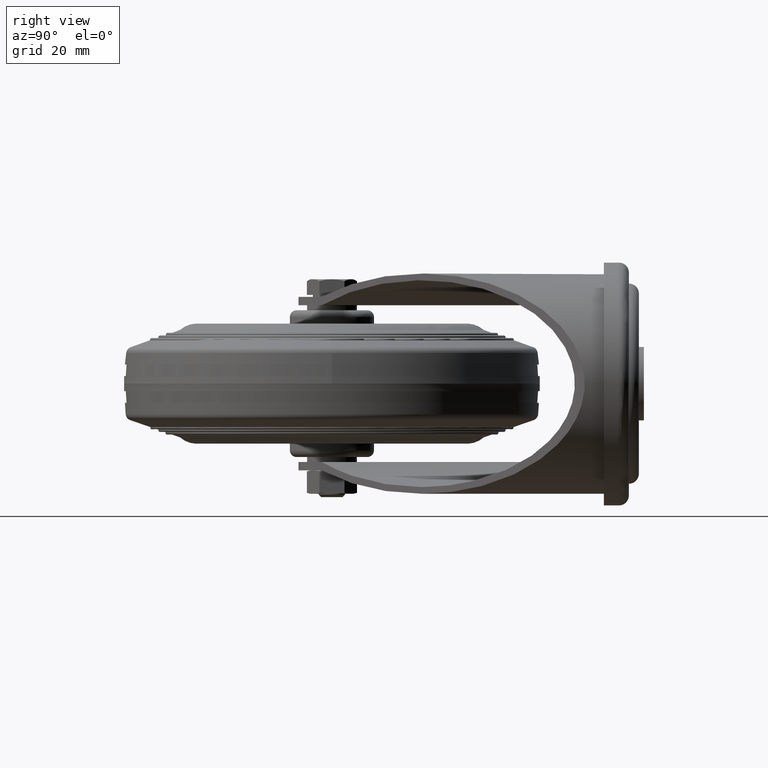
[diagram: clean part render]
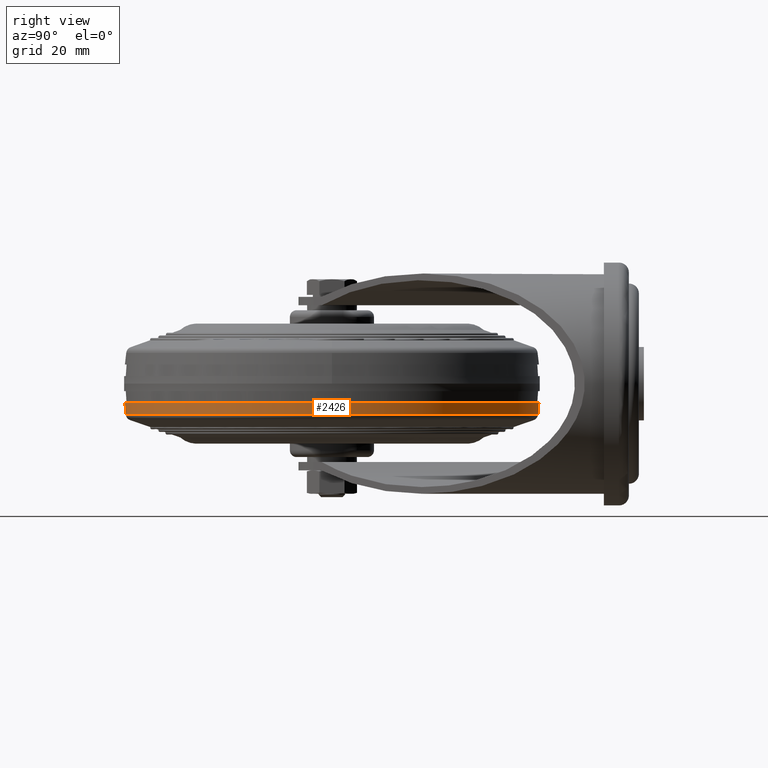
[diagram: same view with one face highlighted and labeled with its STEP entity id]
A machine part, right view. The second image highlights one B-rep face of the part: STEP entity #2426.
In plain terms, the highlighted conical surface has half-angle 4 deg.
Its self-contained STEP definition (entity closure, byte-faithful):
#223=CONICAL_SURFACE('',#2901,62.0979208313248,0.0698131700797732);
#432=CIRCLE('',#2900,62.0979208313248);
#433=CIRCLE('',#2902,61.857908294494);
#601=FACE_OUTER_BOUND('',#789,.T.);
#789=EDGE_LOOP('',(#2138,#2139,#2140,#2141));
#920=LINE('',#4490,#1029);
#1029=VECTOR('',#3627,62.0979208313248);
#1218=VERTEX_POINT('',#4486);
#1219=VERTEX_POINT('',#4489);
#1530=EDGE_CURVE('',#1218,#1218,#432,.T.);
#1531=EDGE_CURVE('',#1218,#1219,#920,.T.);
#1532=EDGE_CURVE('',#1219,#1219,#433,.T.);
#2138=ORIENTED_EDGE('',*,*,#1530,.F.);
#2139=ORIENTED_EDGE('',*,*,#1531,.T.);
#2140=ORIENTED_EDGE('',*,*,#1532,.T.);
#2141=ORIENTED_EDGE('',*,*,#1531,.F.);
#2426=ADVANCED_FACE('',(#601),#223,.T.);
#2900=AXIS2_PLACEMENT_3D('',#4487,#3623,#3624);
#2901=AXIS2_PLACEMENT_3D('',#4488,#3625,#3626);
#2902=AXIS2_PLACEMENT_3D('',#4491,#3628,#3629);
#3623=DIRECTION('center_axis',(1.,0.,0.));
#3624=DIRECTION('ref_axis',(0.,0.,-1.));
#3625=DIRECTION('center_axis',(1.,0.,0.));
#3626=DIRECTION('ref_axis',(0.,0.,-1.));
#3627=DIRECTION('',(-0.997564050259824,8.54270422905495E-18,-0.0697564737441253));
#3628=DIRECTION('center_axis',(1.,0.,0.));
#3629=DIRECTION('ref_axis',(0.,0.,-1.));
#4486=CARTESIAN_POINT('',(16.25,-7.60480199797877E-15,62.0979208313248));
#4487=CARTESIAN_POINT('Origin',(16.25,0.,0.));
#4488=CARTESIAN_POINT('Origin',(16.25,0.,0.));
#4489=CARTESIAN_POINT('',(12.8176608133561,-7.57540893948026E-15,61.857908294494));
#4490=CARTESIAN_POINT('',(16.25,-7.60480199797877E-15,62.0979208313248));
#4491=CARTESIAN_POINT('Origin',(12.8176608133561,0.,0.));